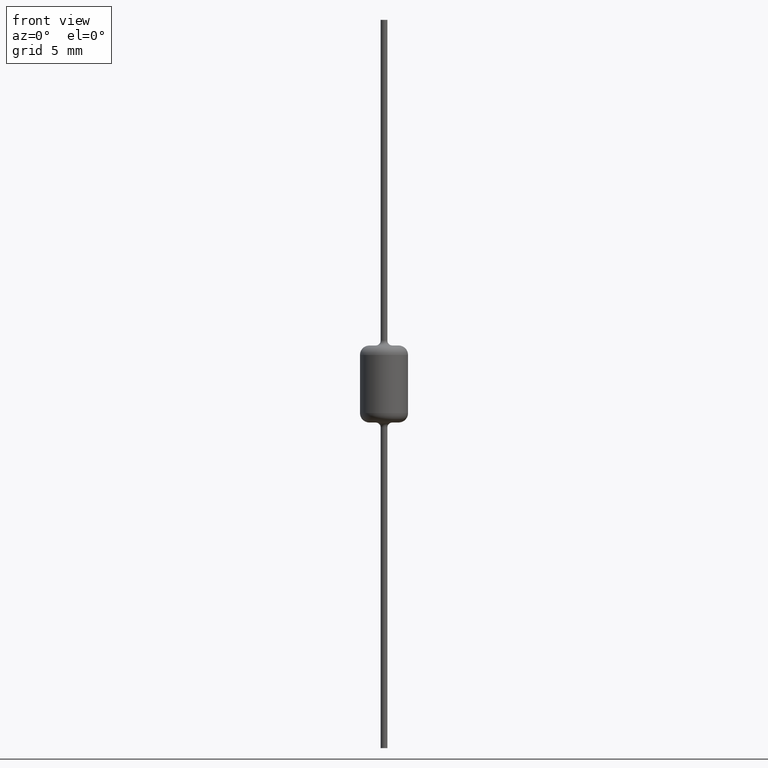
[diagram: clean part render]
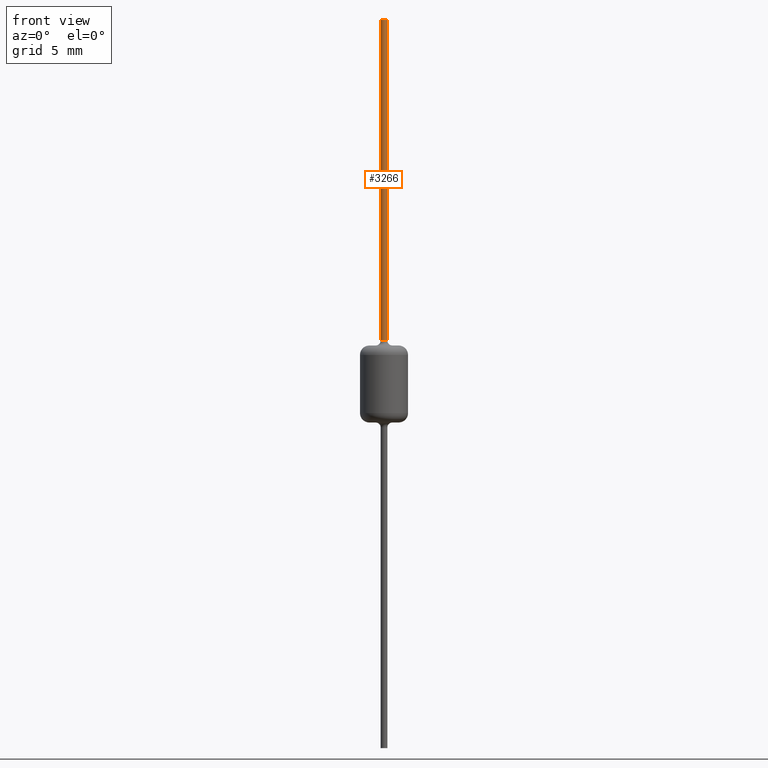
[diagram: same view with one face highlighted and labeled with its STEP entity id]
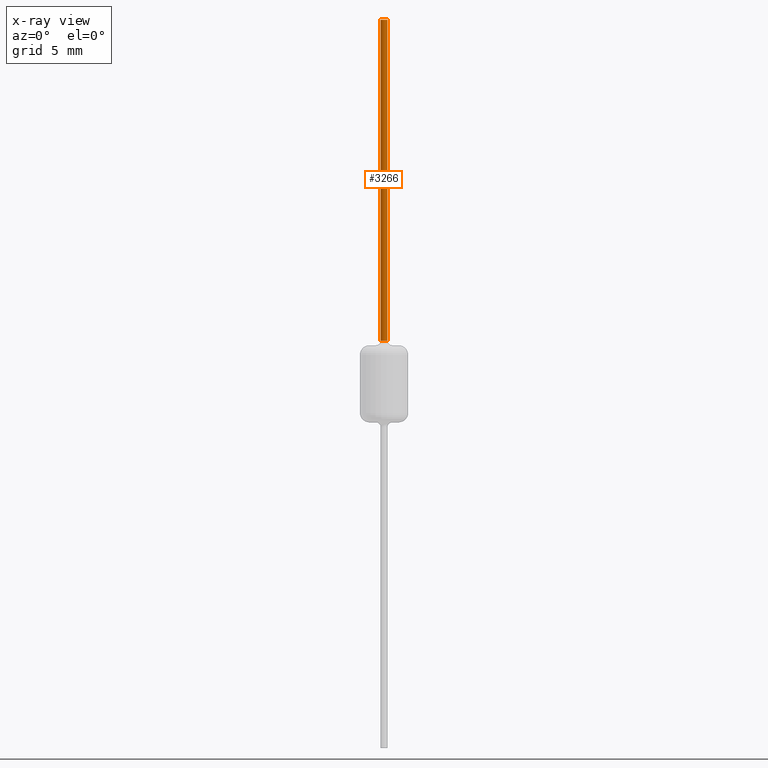
[diagram: x-ray of the same camera — body ghosted, the highlighted face saturated]
A machine part, front view. The second image highlights one B-rep face of the part: STEP entity #3266.
The next image is the same camera in x-ray: the body ghosted, the highlighted face saturated — about 0% of this face is hidden behind the body in this view.
In plain terms, the highlighted cylindrical surface (edge-blend (fillet) strip) has radius 0.2675 mm, axis along (0, 0, -1).
Its self-contained STEP definition (entity closure, byte-faithful):
#187 = DIRECTION ( 'NONE',  ( -1.000000000000000000, 0.0000000000000000000, 0.0000000000000000000 ) ) ;
#497 = ORIENTED_EDGE ( 'NONE', *, *, #3026, .T. ) ;
#500 = ORIENTED_EDGE ( 'NONE', *, *, #3279, .T. ) ;
#562 = CYLINDRICAL_SURFACE ( 'NONE', #2564, 0.2675000000000000200 ) ;
#649 = VECTOR ( 'NONE', #2967, 1000.000000000000000 ) ;
#735 = CARTESIAN_POINT ( 'NONE',  ( 0.0000000000000000000, 0.0000000000000000000, 28.83100000000000000 ) ) ;
#769 = LINE ( 'NONE', #1812, #1827 ) ;
#867 = VERTEX_POINT ( 'NONE', #1152 ) ;
#965 = CARTESIAN_POINT ( 'NONE',  ( -0.2675000000000000200, 5.608882340094877600E-017, 3.430999999999999600 ) ) ;
#1152 = CARTESIAN_POINT ( 'NONE',  ( -0.2675000000000000200, 0.0000000000000000000, 28.83100000000000000 ) ) ;
#1280 = VERTEX_POINT ( 'NONE', #1474 ) ;
#1286 = DIRECTION ( 'NONE',  ( 0.0000000000000000000, 0.0000000000000000000, -1.000000000000000000 ) ) ;
#1353 = LINE ( 'NONE', #3467, #649 ) ;
#1430 = DIRECTION ( 'NONE',  ( -1.000000000000000000, 0.0000000000000000000, 0.0000000000000000000 ) ) ;
#1437 = CARTESIAN_POINT ( 'NONE',  ( 0.0000000000000000000, 0.0000000000000000000, 28.83100000000000000 ) ) ;
#1474 = CARTESIAN_POINT ( 'NONE',  ( 0.2675000000000000200, 0.0000000000000000000, 3.430999999999999600 ) ) ;
#1489 = FACE_OUTER_BOUND ( 'NONE', #1917, .T. ) ;
#1812 = CARTESIAN_POINT ( 'NONE',  ( -0.2675000000000000200, 0.0000000000000000000, 28.83100000000000000 ) ) ;
#1827 = VECTOR ( 'NONE', #3187, 1000.000000000000000 ) ;
#1848 = DIRECTION ( 'NONE',  ( -1.000000000000000000, 0.0000000000000000000, 0.0000000000000000000 ) ) ;
#1917 = EDGE_LOOP ( 'NONE', ( #3007, #497, #500, #2611 ) ) ;
#1933 = VERTEX_POINT ( 'NONE', #1973 ) ;
#1973 = CARTESIAN_POINT ( 'NONE',  ( 0.2675000000000000200, 3.275930187719170000E-017, 28.83100000000000000 ) ) ;
#2077 = DIRECTION ( 'NONE',  ( -0.0000000000000000000, -0.0000000000000000000, 1.000000000000000000 ) ) ;
#2356 = CARTESIAN_POINT ( 'NONE',  ( 0.0000000000000000000, 0.0000000000000000000, 3.430999999999999600 ) ) ;
#2398 = EDGE_CURVE ( 'NONE', #3139, #1280, #2419, .T. ) ;
#2419 = CIRCLE ( 'NONE', #3271, 0.2675000000000000200 ) ;
#2564 = AXIS2_PLACEMENT_3D ( 'NONE', #735, #1286, #1848 ) ;
#2611 = ORIENTED_EDGE ( 'NONE', *, *, #2398, .T. ) ;
#2800 = DIRECTION ( 'NONE',  ( 0.0000000000000000000, 0.0000000000000000000, -1.000000000000000000 ) ) ;
#2967 = DIRECTION ( 'NONE',  ( 0.0000000000000000000, 0.0000000000000000000, -1.000000000000000000 ) ) ;
#3007 = ORIENTED_EDGE ( 'NONE', *, *, #3356, .F. ) ;
#3026 = EDGE_CURVE ( 'NONE', #1933, #867, #3238, .T. ) ;
#3045 = AXIS2_PLACEMENT_3D ( 'NONE', #1437, #2800, #1430 ) ;
#3139 = VERTEX_POINT ( 'NONE', #965 ) ;
#3187 = DIRECTION ( 'NONE',  ( 0.0000000000000000000, 0.0000000000000000000, -1.000000000000000000 ) ) ;
#3238 = CIRCLE ( 'NONE', #3045, 0.2675000000000000200 ) ;
#3266 = ADVANCED_FACE ( 'NONE', ( #1489 ), #562, .T. ) ;
#3271 = AXIS2_PLACEMENT_3D ( 'NONE', #2356, #2077, #187 ) ;
#3279 = EDGE_CURVE ( 'NONE', #867, #3139, #769, .T. ) ;
#3356 = EDGE_CURVE ( 'NONE', #1933, #1280, #1353, .T. ) ;
#3467 = CARTESIAN_POINT ( 'NONE',  ( 0.2675000000000000200, 3.275930187719170000E-017, 28.83100000000000000 ) ) ;